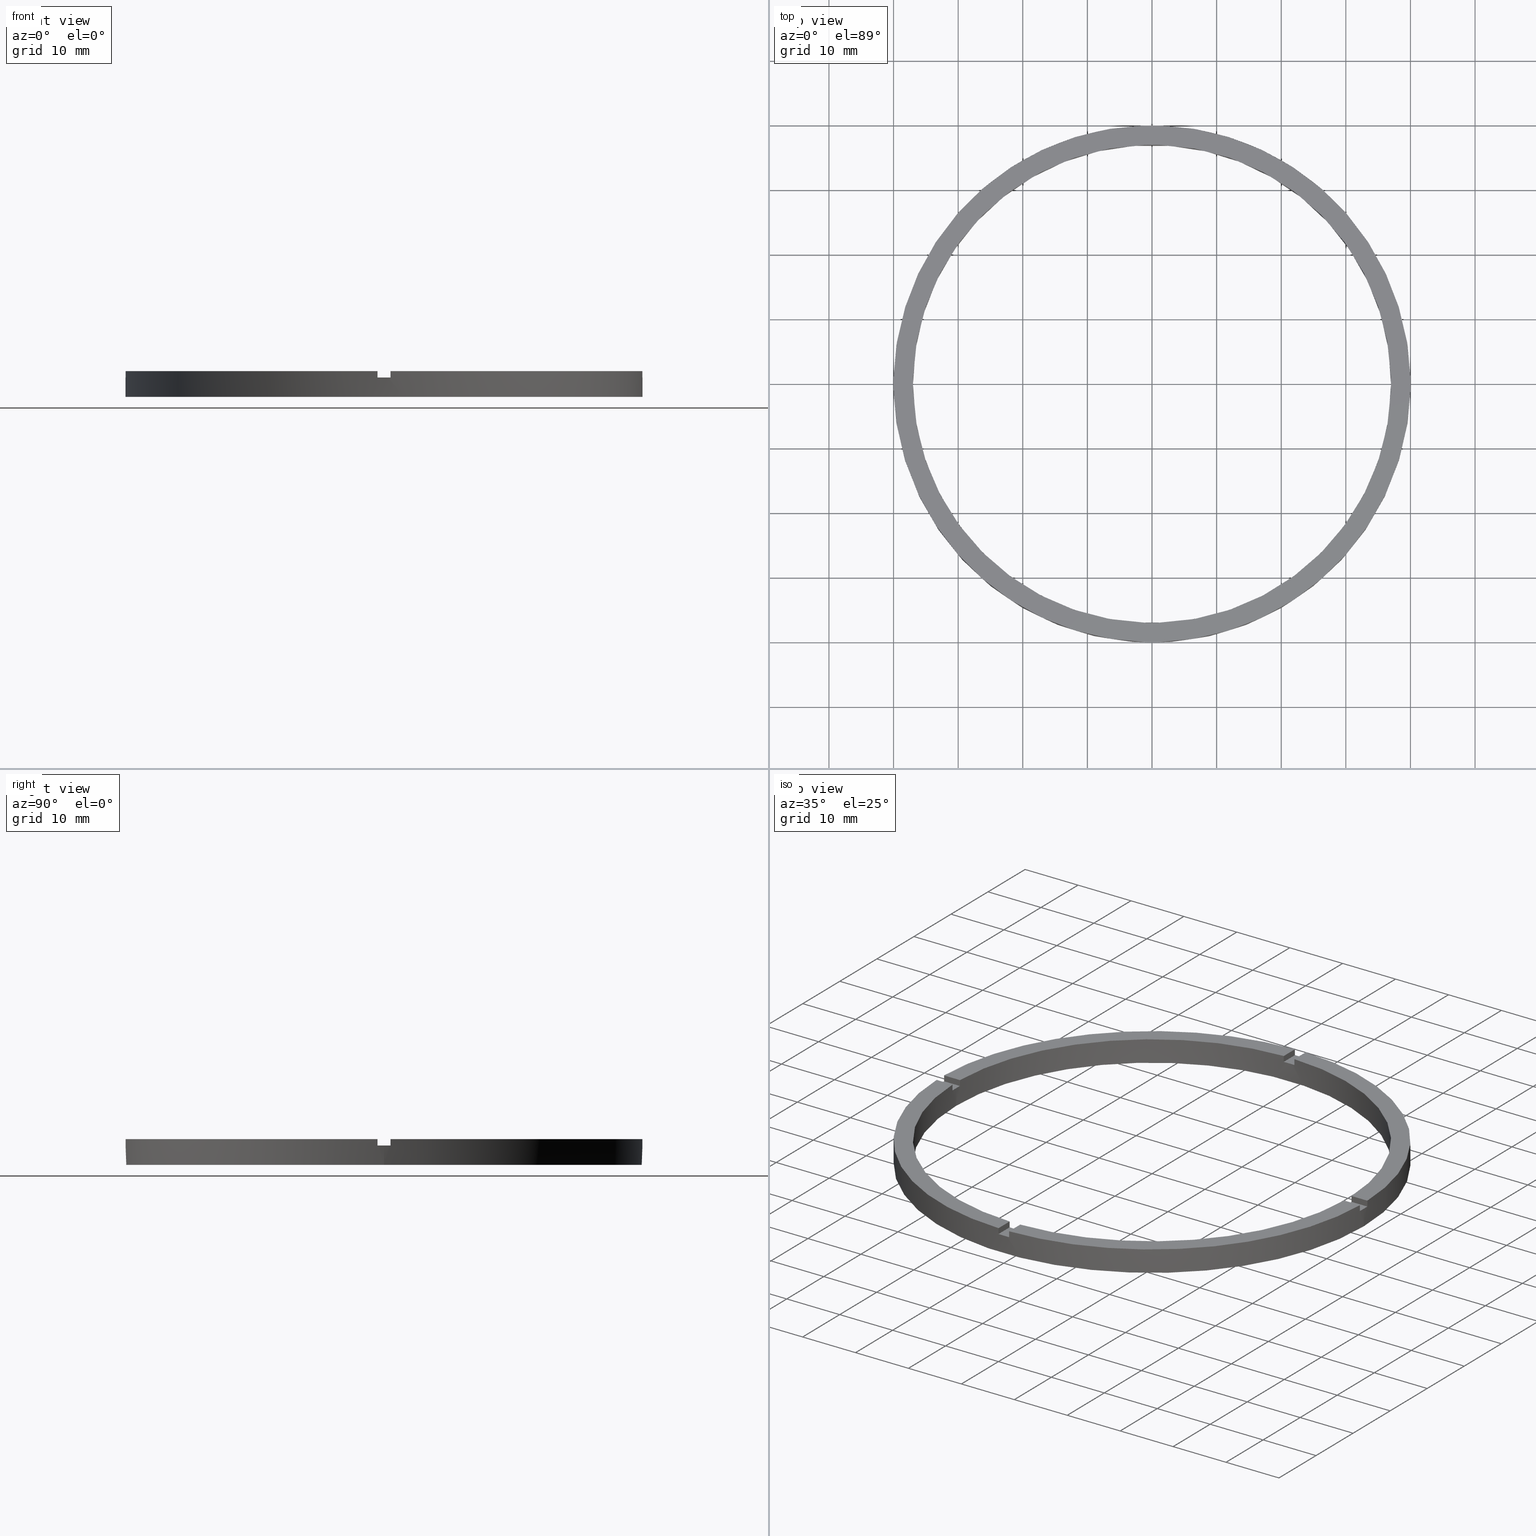
[diagram: canonical four-view strip — front | top / right | iso, engineering-drawing reading convention]
A machine part, canonical four-view strip (front | top / right | iso — engineering-drawing reading convention). The complete STEP part file that produces these views, byte-faithful:
ISO-10303-21;
HEADER;
FILE_DESCRIPTION (( 'STEP AP203' ),
    '1' );
FILE_NAME ('514165.step',
    '2024-12-26T02:43:51',
    ( 'MSI' ),
    ( '' ),
    'SwSTEP 2.0',
    'SolidWorks 2020',
    '' );
FILE_SCHEMA (( 'CONFIG_CONTROL_DESIGN' ));
ENDSEC;

DATA;
#1 = DIRECTION ( 'NONE',  ( 0.000000000000000000, 0.000000000000000000, 1.000000000000000000 ) ) ;
#2 = CIRCLE ( 'NONE', #122, 40.00000000000000000 ) ;
#3 = AXIS2_PLACEMENT_3D ( 'NONE', #463, #532, #585 ) ;
#4 = EDGE_CURVE ( 'NONE', #583, #397, #297, .T. ) ;
#5 = DIRECTION ( 'NONE',  ( 1.000000000000000000, 0.000000000000000000, 0.000000000000000000 ) ) ;
#6 = CARTESIAN_POINT ( 'NONE',  ( 0.000000000000000000, 0.000000000000000000, 4.000000000000000000 ) ) ;
#7 = CARTESIAN_POINT ( 'NONE',  ( -39.98749804626441318, -1.000000000000028422, 4.000000000000000000 ) ) ;
#8 = LINE ( 'NONE', #489, #526 ) ;
#9 = CARTESIAN_POINT ( 'NONE',  ( -1.000000000000159206, -39.98749804626440607, 4.000000000000000000 ) ) ;
#10 = CARTESIAN_POINT ( 'NONE',  ( 0.000000000000000000, 0.000000000000000000, 3.000000000000000000 ) ) ;
#11 = PLANE ( 'NONE',  #385 ) ;
#12 = CARTESIAN_POINT ( 'NONE',  ( 0.000000000000000000, 0.000000000000000000, 3.000000000000000000 ) ) ;
#13 = LINE ( 'NONE', #47, #275 ) ;
#14 = CIRCLE ( 'NONE', #705, 37.00000000000000000 ) ;
#15 = FACE_OUTER_BOUND ( 'NONE', #228, .T. ) ;
#16 = DIRECTION ( 'NONE',  ( -0.000000000000000000, -0.000000000000000000, -1.000000000000000000 ) ) ;
#17 = AXIS2_PLACEMENT_3D ( 'NONE', #46, #449, #520 ) ;
#18 = EDGE_CURVE ( 'NONE', #223, #123, #572, .T. ) ;
#19 = EDGE_CURVE ( 'NONE', #565, #665, #313, .T. ) ;
#20 = CIRCLE ( 'NONE', #439, 40.00000000000000000 ) ;
#21 = DIRECTION ( 'NONE',  ( -0.000000000000000000, -1.000000000000000000, -0.000000000000000000 ) ) ;
#22 = CARTESIAN_POINT ( 'NONE',  ( -1.000000000000025535, 36.98648401781385786, 3.000000000000000000 ) ) ;
#23 = CIRCLE ( 'NONE', #3, 40.00000000000000000 ) ;
#24 = AXIS2_PLACEMENT_3D ( 'NONE', #213, #295, #691 ) ;
#25 = DIRECTION ( 'NONE',  ( 0.000000000000000000, 0.000000000000000000, 1.000000000000000000 ) ) ;
#26 = DIRECTION ( 'NONE',  ( 1.000000000000000000, 0.000000000000000000, 0.000000000000000000 ) ) ;
#27 = EDGE_CURVE ( 'NONE', #58, #727, #299, .T. ) ;
#28 = CARTESIAN_POINT ( 'NONE',  ( 0.000000000000000000, 0.000000000000000000, 3.000000000000000000 ) ) ;
#29 = FACE_OUTER_BOUND ( 'NONE', #669, .T. ) ;
#30 = CC_DESIGN_DATE_AND_TIME_ASSIGNMENT ( #450, #353, ( #198 ) ) ;
#31 = DIRECTION ( 'NONE',  ( 1.000000000000000000, 0.000000000000000000, 0.000000000000000000 ) ) ;
#32 = AXIS2_PLACEMENT_3D ( 'NONE', #155, #261, #414 ) ;
#33 = ORIENTED_EDGE ( 'NONE', *, *, #732, .F. ) ;
#34 = ORIENTED_EDGE ( 'NONE', *, *, #762, .T. ) ;
#35 = ADVANCED_FACE ( 'NONE', ( #49 ), #322, .T. ) ;
#36 = CARTESIAN_POINT ( 'NONE',  ( 0.9999999999999744649, 36.98648401781385786, 4.000000000000000000 ) ) ;
#37 = VERTEX_POINT ( 'NONE', #428 ) ;
#38 = VECTOR ( 'NONE', #775, 1000.000000000000000 ) ;
#39 = DIRECTION ( 'NONE',  ( 0.000000000000000000, 0.000000000000000000, 1.000000000000000000 ) ) ;
#40 = VECTOR ( 'NONE', #107, 1000.000000000000000 ) ;
#41 = EDGE_CURVE ( 'NONE', #145, #234, #68, .T. ) ;
#42 = VERTEX_POINT ( 'NONE', #240 ) ;
#43 = ORIENTED_EDGE ( 'NONE', *, *, #557, .F. ) ;
#44 = ADVANCED_FACE ( 'NONE', ( #600 ), #64, .T. ) ;
#45 = VERTEX_POINT ( 'NONE', #184 ) ;
#46 = CARTESIAN_POINT ( 'NONE',  ( 0.000000000000000000, 0.000000000000000000, 3.000000000000000000 ) ) ;
#47 = CARTESIAN_POINT ( 'NONE',  ( 0.9999999999998404610, -36.98648401781386497, 4.000000000000000000 ) ) ;
#48 = EDGE_LOOP ( 'NONE', ( #314, #578, #214, #633, #566, #587, #293, #296, #568, #406, #141, #368 ) ) ;
#49 = FACE_OUTER_BOUND ( 'NONE', #48, .T. ) ;
#50 = ORIENTED_EDGE ( 'NONE', *, *, #608, .F. ) ;
#51 = VERTEX_POINT ( 'NONE', #69 ) ;
#52 = DIRECTION ( 'NONE',  ( 0.000000000000000000, 1.000000000000000000, 0.000000000000000000 ) ) ;
#53 = CARTESIAN_POINT ( 'NONE',  ( 0.000000000000000000, 0.000000000000000000, 3.000000000000000000 ) ) ;
#54 = ORIENTED_EDGE ( 'NONE', *, *, #248, .T. ) ;
#55 = VERTEX_POINT ( 'NONE', #560 ) ;
#56 = DIRECTION ( 'NONE',  ( 0.000000000000000000, 0.000000000000000000, 1.000000000000000000 ) ) ;
#57 = DIRECTION ( 'NONE',  ( -1.000000000000000000, -6.505213034913025371E-17, -0.000000000000000000 ) ) ;
#58 = VERTEX_POINT ( 'NONE', #190 ) ;
#59 = CARTESIAN_POINT ( 'NONE',  ( -36.98648401781385786, 0.9999999999999722444, 4.000000000000000000 ) ) ;
#60 = AXIS2_PLACEMENT_3D ( 'NONE', #440, #117, #467 ) ;
#61 = ORIENTED_EDGE ( 'NONE', *, *, #666, .F. ) ;
#62 = DIRECTION ( 'NONE',  ( 0.000000000000000000, 0.000000000000000000, 1.000000000000000000 ) ) ;
#63 = CARTESIAN_POINT ( 'NONE',  ( 0.000000000000000000, 0.000000000000000000, 0.000000000000000000 ) ) ;
#64 = CYLINDRICAL_SURFACE ( 'NONE', #148, 40.00000000000000000 ) ;
#65 = PLANE ( 'NONE',  #498 ) ;
#66 = DIRECTION ( 'NONE',  ( 0.000000000000000000, 0.000000000000000000, 1.000000000000000000 ) ) ;
#67 = CALENDAR_DATE ( 2024, 26, 12 ) ;
#68 = CIRCLE ( 'NONE', #465, 37.00000000000000000 ) ;
#69 = CARTESIAN_POINT ( 'NONE',  ( 0.9999999999998409050, -39.98749804626441318, 3.000000000000000000 ) ) ;
#70 = DIRECTION ( 'NONE',  ( 1.000000000000000000, 0.000000000000000000, 0.000000000000000000 ) ) ;
#71 = DIRECTION ( 'NONE',  ( 0.000000000000000000, 0.000000000000000000, 1.000000000000000000 ) ) ;
#72 = VECTOR ( 'NONE', #142, 1000.000000000000000 ) ;
#73 = CARTESIAN_POINT ( 'NONE',  ( 0.000000000000000000, 0.000000000000000000, 4.000000000000000000 ) ) ;
#74 = PERSON_AND_ORGANIZATION ( #692, #333 ) ;
#75 = DATE_AND_TIME ( #606, #613 ) ;
#76 = CARTESIAN_POINT ( 'NONE',  ( 36.98648401781385076, -1.000000000000157208, 3.000000000000000000 ) ) ;
#77 =( LENGTH_UNIT ( ) NAMED_UNIT ( * ) SI_UNIT ( .MILLI., .METRE. ) );
#78 = CARTESIAN_POINT ( 'NONE',  ( 40.00000000000000000, 4.898587196589413026E-15, 3.000000000000000000 ) ) ;
#79 = LINE ( 'NONE', #150, #91 ) ;
#80 = EDGE_CURVE ( 'NONE', #573, #747, #603, .T. ) ;
#81 = EDGE_CURVE ( 'NONE', #116, #92, #555, .T. ) ;
#82 = LINE ( 'NONE', #518, #104 ) ;
#83 = PERSON_AND_ORGANIZATION ( #692, #333 ) ;
#84 = PLANE ( 'NONE',  #32 ) ;
#85 = DIRECTION ( 'NONE',  ( 1.000000000000000000, 1.951563910473907735E-16, -0.000000000000000000 ) ) ;
#86 = VECTOR ( 'NONE', #25, 1000.000000000000000 ) ;
#87 = COORDINATED_UNIVERSAL_TIME_OFFSET ( 8, 0, .AHEAD. ) ;
#88 = DIRECTION ( 'NONE',  ( -0.000000000000000000, 0.000000000000000000, 1.000000000000000000 ) ) ;
#89 = APPROVAL_DATE_TIME ( #75, #171 ) ;
#90 = CARTESIAN_POINT ( 'NONE',  ( 0.9999999999999744649, 30.00000000000000000, 3.000000000000000000 ) ) ;
#91 = VECTOR ( 'NONE', #693, 1000.000000000000000 ) ;
#92 = VERTEX_POINT ( 'NONE', #339 ) ;
#93 = ADVANCED_FACE ( 'NONE', ( #29 ), #549, .F. ) ;
#94 = EDGE_CURVE ( 'NONE', #45, #223, #276, .T. ) ;
#95 = CARTESIAN_POINT ( 'NONE',  ( -1.000000000000160538, -30.00000000000017764, 4.000000000000000000 ) ) ;
#96 = DIRECTION ( 'NONE',  ( -1.000000000000000000, -1.951563910473907735E-16, 0.000000000000000000 ) ) ;
#97 = VECTOR ( 'NONE', #205, 1000.000000000000000 ) ;
#98 = MANIFOLD_SOLID_BREP ( '�г�-����1', #491 ) ;
#99 = LINE ( 'NONE', #680, #86 ) ;
#100 = AXIS2_PLACEMENT_3D ( 'NONE', #410, #718, #365 ) ;
#101 = CC_DESIGN_APPROVAL ( #308, ( #198 ) ) ;
#102 = DIRECTION ( 'NONE',  ( 0.000000000000000000, 0.000000000000000000, 1.000000000000000000 ) ) ;
#103 = ORIENTED_EDGE ( 'NONE', *, *, #697, .T. ) ;
#104 = VECTOR ( 'NONE', #580, 1000.000000000000000 ) ;
#105 = AXIS2_PLACEMENT_3D ( 'NONE', #444, #678, #250 ) ;
#106 = VECTOR ( 'NONE', #522, 1000.000000000000000 ) ;
#107 = DIRECTION ( 'NONE',  ( 0.000000000000000000, 0.000000000000000000, 1.000000000000000000 ) ) ;
#108 = EDGE_LOOP ( 'NONE', ( #212, #760, #725, #479 ) ) ;
#109 = VECTOR ( 'NONE', #16, 1000.000000000000000 ) ;
#110 = PLANE ( 'NONE',  #289 ) ;
#111 = CARTESIAN_POINT ( 'NONE',  ( -37.00000000000000000, 0.000000000000000000, 0.000000000000000000 ) ) ;
#112 = FACE_OUTER_BOUND ( 'NONE', #481, .T. ) ;
#113 = DIRECTION ( 'NONE',  ( 0.000000000000000000, 0.000000000000000000, 1.000000000000000000 ) ) ;
#114 = EDGE_CURVE ( 'NONE', #58, #510, #14, .T. ) ;
#115 = SECURITY_CLASSIFICATION_LEVEL ( 'unclassified' ) ;
#116 = VERTEX_POINT ( 'NONE', #111 ) ;
#117 = DIRECTION ( 'NONE',  ( 0.000000000000000000, 0.000000000000000000, 1.000000000000000000 ) ) ;
#118 = DIRECTION ( 'NONE',  ( -1.000000000000000000, -1.951563910473907735E-16, 0.000000000000000000 ) ) ;
#119 = VECTOR ( 'NONE', #152, 1000.000000000000000 ) ;
#120 = VERTEX_POINT ( 'NONE', #225 ) ;
#121 = DIRECTION ( 'NONE',  ( 1.301042606982605074E-16, -1.000000000000000000, 0.000000000000000000 ) ) ;
#122 = AXIS2_PLACEMENT_3D ( 'NONE', #12, #441, #497 ) ;
#123 = VERTEX_POINT ( 'NONE', #517 ) ;
#124 = DIRECTION ( 'NONE',  ( -1.000000000000000000, 0.000000000000000000, 0.000000000000000000 ) ) ;
#125 = CIRCLE ( 'NONE', #673, 40.00000000000000000 ) ;
#126 = EDGE_CURVE ( 'NONE', #763, #123, #268, .T. ) ;
#127 = CIRCLE ( 'NONE', #194, 40.00000000000000000 ) ;
#128 = EDGE_LOOP ( 'NONE', ( #362, #34, #367, #413 ) ) ;
#129 = ORIENTED_EDGE ( 'NONE', *, *, #524, .T. ) ;
#130 = DIRECTION ( 'NONE',  ( -1.000000000000000000, 0.000000000000000000, 0.000000000000000000 ) ) ;
#131 = LINE ( 'NONE', #392, #119 ) ;
#132 = ORIENTED_EDGE ( 'NONE', *, *, #423, .T. ) ;
#133 = CIRCLE ( 'NONE', #167, 40.00000000000000000 ) ;
#134 = EDGE_LOOP ( 'NONE', ( #307, #757, #574, #320, #739, #581 ) ) ;
#135 = CARTESIAN_POINT ( 'NONE',  ( 29.99999999999999289, -1.000000000000157652, 4.000000000000000000 ) ) ;
#136 = EDGE_CURVE ( 'NONE', #756, #510, #548, .T. ) ;
#137 = FACE_OUTER_BOUND ( 'NONE', #468, .T. ) ;
#138 = DIRECTION ( 'NONE',  ( -0.000000000000000000, -0.000000000000000000, -1.000000000000000000 ) ) ;
#139 = ORIENTED_EDGE ( 'NONE', *, *, #697, .F. ) ;
#140 = ORIENTED_EDGE ( 'NONE', *, *, #504, .F. ) ;
#141 = ORIENTED_EDGE ( 'NONE', *, *, #720, .T. ) ;
#142 = DIRECTION ( 'NONE',  ( -0.000000000000000000, -0.000000000000000000, -1.000000000000000000 ) ) ;
#143 = CARTESIAN_POINT ( 'NONE',  ( 0.000000000000000000, 0.000000000000000000, 4.000000000000000000 ) ) ;
#144 = PLANE ( 'NONE',  #285 ) ;
#145 = VERTEX_POINT ( 'NONE', #76 ) ;
#146 = DIRECTION ( 'NONE',  ( 0.000000000000000000, 0.000000000000000000, 1.000000000000000000 ) ) ;
#147 = VERTEX_POINT ( 'NONE', #597 ) ;
#148 = AXIS2_PLACEMENT_3D ( 'NONE', #363, #550, #130 ) ;
#149 = DIRECTION ( 'NONE',  ( 0.000000000000000000, 0.000000000000000000, 1.000000000000000000 ) ) ;
#150 = CARTESIAN_POINT ( 'NONE',  ( 0.9999999999998395728, -30.00000000000017764, 4.000000000000000000 ) ) ;
#151 = ORIENTED_EDGE ( 'NONE', *, *, #324, .T. ) ;
#152 = DIRECTION ( 'NONE',  ( -0.000000000000000000, -0.000000000000000000, -1.000000000000000000 ) ) ;
#153 = VERTEX_POINT ( 'NONE', #569 ) ;
#154 = EDGE_LOOP ( 'NONE', ( #383, #482, #222, #430 ) ) ;
#155 = CARTESIAN_POINT ( 'NONE',  ( 0.000000000000000000, 0.000000000000000000, 4.000000000000000000 ) ) ;
#156 = LINE ( 'NONE', #168, #420 ) ;
#157 = CARTESIAN_POINT ( 'NONE',  ( 0.9999999999998409050, -39.98749804626441318, 4.000000000000000000 ) ) ;
#158 = ORIENTED_EDGE ( 'NONE', *, *, #164, .T. ) ;
#159 = ORIENTED_EDGE ( 'NONE', *, *, #251, .F. ) ;
#160 = CARTESIAN_POINT ( 'NONE',  ( -39.98749804626441318, -1.000000000000028422, 4.000000000000000000 ) ) ;
#161 = CARTESIAN_POINT ( 'NONE',  ( -1.000000000000025535, 30.00000000000000000, 3.000000000000000000 ) ) ;
#162 = AXIS2_PLACEMENT_3D ( 'NONE', #507, #620, #374 ) ;
#163 = CARTESIAN_POINT ( 'NONE',  ( -30.00000000000018474, -1.000000000000026423, 4.000000000000000000 ) ) ;
#164 = EDGE_CURVE ( 'NONE', #359, #473, #20, .T. ) ;
#165 = APPROVAL_STATUS ( 'not_yet_approved' ) ;
#166 = ADVANCED_FACE ( 'NONE', ( #15 ), #269, .F. ) ;
#167 = AXIS2_PLACEMENT_3D ( 'NONE', #539, #759, #31 ) ;
#168 = CARTESIAN_POINT ( 'NONE',  ( -30.00000000000018474, 0.9999999999999735767, 4.000000000000000000 ) ) ;
#169 = DIRECTION ( 'NONE',  ( -0.000000000000000000, -0.000000000000000000, -1.000000000000000000 ) ) ;
#170 = DIRECTION ( 'NONE',  ( -0.000000000000000000, -0.000000000000000000, -1.000000000000000000 ) ) ;
#171 = APPROVAL ( #586, 'δָ��' ) ;
#172 = ADVANCED_FACE ( 'NONE', ( #278 ), #84, .T. ) ;
#173 = CALENDAR_DATE ( 2024, 26, 12 ) ;
#174 = COORDINATED_UNIVERSAL_TIME_OFFSET ( 8, 0, .AHEAD. ) ;
#175 = LOCAL_TIME ( 10, 43, 51.00000000000000000, #174 ) ;
#176 = LOCAL_TIME ( 10, 43, 51.00000000000000000, #699 ) ;
#177 = AXIS2_PLACEMENT_3D ( 'NONE', #283, #342, #124 ) ;
#178 = PERSON_AND_ORGANIZATION ( #692, #333 ) ;
#179 = PERSON_AND_ORGANIZATION ( #692, #333 ) ;
#180 = CARTESIAN_POINT ( 'NONE',  ( 0.000000000000000000, 0.000000000000000000, 3.000000000000000000 ) ) ;
#181 = CARTESIAN_POINT ( 'NONE',  ( 0.000000000000000000, 0.000000000000000000, 3.000000000000000000 ) ) ;
#182 = DIRECTION ( 'NONE',  ( 0.000000000000000000, 0.000000000000000000, 1.000000000000000000 ) ) ;
#183 = AXIS2_PLACEMENT_3D ( 'NONE', #398, #631, #627 ) ;
#184 = CARTESIAN_POINT ( 'NONE',  ( 0.9999999999998404610, -36.98648401781386497, 4.000000000000000000 ) ) ;
#185 = EDGE_CURVE ( 'NONE', #749, #397, #23, .T. ) ;
#186 = DIRECTION ( 'NONE',  ( 1.000000000000000000, 6.505213034913025371E-17, 0.000000000000000000 ) ) ;
#187 = AXIS2_PLACEMENT_3D ( 'NONE', #53, #654, #483 ) ;
#188 = DIRECTION ( 'NONE',  ( -0.000000000000000000, -0.000000000000000000, -1.000000000000000000 ) ) ;
#189 = CARTESIAN_POINT ( 'NONE',  ( -36.98648401781385786, -1.000000000000027756, 4.000000000000000000 ) ) ;
#190 = CARTESIAN_POINT ( 'NONE',  ( 0.9999999999999744649, 36.98648401781385786, 3.000000000000000000 ) ) ;
#191 = DIRECTION ( 'NONE',  ( 1.000000000000000000, 0.000000000000000000, 0.000000000000000000 ) ) ;
#192 = DIRECTION ( 'NONE',  ( 0.000000000000000000, 0.000000000000000000, -1.000000000000000000 ) ) ;
#193 = ORIENTED_EDGE ( 'NONE', *, *, #232, .F. ) ;
#194 = AXIS2_PLACEMENT_3D ( 'NONE', #263, #325, #26 ) ;
#195 = ORIENTED_EDGE ( 'NONE', *, *, #589, .F. ) ;
#196 = EDGE_LOOP ( 'NONE', ( #509, #132, #158, #209, #139, #151, #496, #726, #409, #679, #435, #411 ) ) ;
#197 = ORIENTED_EDGE ( 'NONE', *, *, #41, .T. ) ;
#198 = SECURITY_CLASSIFICATION ( '', '', #115 ) ;
#199 = DIRECTION ( 'NONE',  ( 1.000000000000000000, 0.000000000000000000, 0.000000000000000000 ) ) ;
#200 = ORIENTED_EDGE ( 'NONE', *, *, #557, .T. ) ;
#201 = EDGE_LOOP ( 'NONE', ( #662, #306, #674, #315 ) ) ;
#202 = ORIENTED_EDGE ( 'NONE', *, *, #626, .F. ) ;
#203 = PLANE ( 'NONE',  #437 ) ;
#204 = ORIENTED_EDGE ( 'NONE', *, *, #136, .F. ) ;
#205 = DIRECTION ( 'NONE',  ( -1.301042606982605074E-16, 1.000000000000000000, -0.000000000000000000 ) ) ;
#206 = ORIENTED_EDGE ( 'NONE', *, *, #279, .F. ) ;
#207 = ORIENTED_EDGE ( 'NONE', *, *, #504, .T. ) ;
#208 = CARTESIAN_POINT ( 'NONE',  ( -1.000000000000159206, -39.98749804626440607, 3.000000000000000000 ) ) ;
#209 = ORIENTED_EDGE ( 'NONE', *, *, #720, .F. ) ;
#210 = ORIENTED_EDGE ( 'NONE', *, *, #687, .F. ) ;
#211 = DIRECTION ( 'NONE',  ( 1.000000000000000000, 0.000000000000000000, -0.000000000000000000 ) ) ;
#212 = ORIENTED_EDGE ( 'NONE', *, *, #682, .T. ) ;
#213 = CARTESIAN_POINT ( 'NONE',  ( 0.000000000000000000, 0.000000000000000000, 3.000000000000000000 ) ) ;
#214 = ORIENTED_EDGE ( 'NONE', *, *, #625, .T. ) ;
#215 = ORIENTED_EDGE ( 'NONE', *, *, #553, .T. ) ;
#216 = PERSON_AND_ORGANIZATION_ROLE ( 'creator' ) ;
#217 = ORIENTED_EDGE ( 'NONE', *, *, #266, .T. ) ;
#218 = VECTOR ( 'NONE', #39, 1000.000000000000000 ) ;
#219 = EDGE_CURVE ( 'NONE', #747, #733, #271, .T. ) ;
#220 = ORIENTED_EDGE ( 'NONE', *, *, #286, .T. ) ;
#221 = EDGE_CURVE ( 'NONE', #721, #583, #543, .T. ) ;
#222 = ORIENTED_EDGE ( 'NONE', *, *, #553, .F. ) ;
#223 = VERTEX_POINT ( 'NONE', #238 ) ;
#224 = DIRECTION ( 'NONE',  ( -0.000000000000000000, -0.000000000000000000, -1.000000000000000000 ) ) ;
#225 = CARTESIAN_POINT ( 'NONE',  ( -39.98749804626441318, -1.000000000000028422, 3.000000000000000000 ) ) ;
#226 = ORIENTED_EDGE ( 'NONE', *, *, #4, .F. ) ;
#227 = ORIENTED_EDGE ( 'NONE', *, *, #355, .F. ) ;
#228 = EDGE_LOOP ( 'NONE', ( #197, #217, #472, #140, #200, #381, #475, #670, #129, #771, #731, #229 ) ) ;
#229 = ORIENTED_EDGE ( 'NONE', *, *, #762, .F. ) ;
#230 = CARTESIAN_POINT ( 'NONE',  ( 29.99999999999999289, 0.9999999999998423483, 3.000000000000000000 ) ) ;
#231 = ORIENTED_EDGE ( 'NONE', *, *, #682, .F. ) ;
#232 = EDGE_CURVE ( 'NONE', #756, #37, #544, .T. ) ;
#233 = FACE_OUTER_BOUND ( 'NONE', #201, .T. ) ;
#234 = VERTEX_POINT ( 'NONE', #358 ) ;
#235 = VECTOR ( 'NONE', #182, 1000.000000000000000 ) ;
#236 = VECTOR ( 'NONE', #707, 1000.000000000000000 ) ;
#237 = CARTESIAN_POINT ( 'NONE',  ( 37.00000000000000000, 4.531193156845206793E-15, 4.000000000000000000 ) ) ;
#238 = CARTESIAN_POINT ( 'NONE',  ( 36.98648401781385076, -1.000000000000157208, 4.000000000000000000 ) ) ;
#239 = AXIS2_PLACEMENT_3D ( 'NONE', #595, #528, #199 ) ;
#240 = CARTESIAN_POINT ( 'NONE',  ( 0.9999999999998404610, -36.98648401781386497, 3.000000000000000000 ) ) ;
#241 = LINE ( 'NONE', #724, #235 ) ;
#242 = LINE ( 'NONE', #290, #738 ) ;
#243 = DIRECTION ( 'NONE',  ( -1.951563910473907735E-16, 1.000000000000000000, 0.000000000000000000 ) ) ;
#244 = CARTESIAN_POINT ( 'NONE',  ( 0.000000000000000000, 0.000000000000000000, 3.000000000000000000 ) ) ;
#245 = DIRECTION ( 'NONE',  ( 0.000000000000000000, 0.000000000000000000, 1.000000000000000000 ) ) ;
#246 =( GEOMETRIC_REPRESENTATION_CONTEXT ( 3 ) GLOBAL_UNCERTAINTY_ASSIGNED_CONTEXT ( ( #640 ) ) GLOBAL_UNIT_ASSIGNED_CONTEXT ( ( #77, #688, #753 ) ) REPRESENTATION_CONTEXT ( 'NONE', 'WORKASPACE' ) );
#247 = DIRECTION ( 'NONE',  ( 1.951563910473907735E-16, -1.000000000000000000, 0.000000000000000000 ) ) ;
#248 = EDGE_CURVE ( 'NONE', #45, #42, #13, .T. ) ;
#249 = PLANE ( 'NONE',  #255 ) ;
#250 = DIRECTION ( 'NONE',  ( 1.000000000000000000, 0.000000000000000000, -0.000000000000000000 ) ) ;
#251 = EDGE_CURVE ( 'NONE', #473, #359, #545, .T. ) ;
#252 = VECTOR ( 'NONE', #186, 1000.000000000000000 ) ;
#253 = DIRECTION ( 'NONE',  ( -1.000000000000000000, 0.000000000000000000, 0.000000000000000000 ) ) ;
#254 = PLANE ( 'NONE',  #183 ) ;
#255 = AXIS2_PLACEMENT_3D ( 'NONE', #681, #243, #118 ) ;
#256 = CIRCLE ( 'NONE', #455, 37.00000000000000000 ) ;
#257 = CARTESIAN_POINT ( 'NONE',  ( 0.9999999999998395728, -30.00000000000017764, 3.000000000000000000 ) ) ;
#258 = ADVANCED_FACE ( 'NONE', ( #511 ), #372, .T. ) ;
#259 = CARTESIAN_POINT ( 'NONE',  ( -36.98648401781385786, 0.9999999999999722444, 3.000000000000000000 ) ) ;
#260 = CIRCLE ( 'NONE', #584, 37.00000000000000000 ) ;
#261 = DIRECTION ( 'NONE',  ( 0.000000000000000000, 0.000000000000000000, 1.000000000000000000 ) ) ;
#262 = CARTESIAN_POINT ( 'NONE',  ( -36.98648401781385786, -1.000000000000027756, 3.000000000000000000 ) ) ;
#263 = CARTESIAN_POINT ( 'NONE',  ( 0.000000000000000000, 0.000000000000000000, 4.000000000000000000 ) ) ;
#264 = ADVANCED_FACE ( 'NONE', ( #492 ), #730, .T. ) ;
#265 = PLANE ( 'NONE',  #60 ) ;
#266 = EDGE_CURVE ( 'NONE', #234, #92, #768, .T. ) ;
#267 = CARTESIAN_POINT ( 'NONE',  ( 0.000000000000000000, 0.000000000000000000, 4.000000000000000000 ) ) ;
#268 = CIRCLE ( 'NONE', #745, 40.00000000000000000 ) ;
#269 = CYLINDRICAL_SURFACE ( 'NONE', #393, 37.00000000000000000 ) ;
#270 = ADVANCED_FACE ( 'NONE', ( #233 ), #110, .T. ) ;
#271 = LINE ( 'NONE', #230, #282 ) ;
#272 = VECTOR ( 'NONE', #121, 1000.000000000000000 ) ;
#273 = CARTESIAN_POINT ( 'NONE',  ( 0.9999999999998395728, -30.00000000000017764, 3.000000000000000000 ) ) ;
#274 = CC_DESIGN_SECURITY_CLASSIFICATION ( #198, ( #304 ) ) ;
#275 = VECTOR ( 'NONE', #433, 1000.000000000000000 ) ;
#276 = CIRCLE ( 'NONE', #277, 37.00000000000000000 ) ;
#277 = AXIS2_PLACEMENT_3D ( 'NONE', #331, #379, #647 ) ;
#278 = FACE_OUTER_BOUND ( 'NONE', #154, .T. ) ;
#279 = EDGE_CURVE ( 'NONE', #575, #147, #241, .T. ) ;
#280 = DIRECTION ( 'NONE',  ( 0.000000000000000000, 0.000000000000000000, 1.000000000000000000 ) ) ;
#281 = ADVANCED_FACE ( 'NONE', ( #770 ), #470, .T. ) ;
#282 = VECTOR ( 'NONE', #287, 1000.000000000000000 ) ;
#283 = CARTESIAN_POINT ( 'NONE',  ( 0.000000000000000000, 0.000000000000000000, 4.000000000000000000 ) ) ;
#284 = CARTESIAN_POINT ( 'NONE',  ( 40.00000000000000000, 4.898587196589413026E-15, 0.000000000000000000 ) ) ;
#285 = AXIS2_PLACEMENT_3D ( 'NONE', #267, #462, #211 ) ;
#286 = EDGE_CURVE ( 'NONE', #234, #733, #779, .T. ) ;
#287 = DIRECTION ( 'NONE',  ( -1.000000000000000000, -6.505213034913025371E-17, -0.000000000000000000 ) ) ;
#288 = ORIENTED_EDGE ( 'NONE', *, *, #94, .F. ) ;
#289 = AXIS2_PLACEMENT_3D ( 'NONE', #244, #612, #302 ) ;
#290 = CARTESIAN_POINT ( 'NONE',  ( -1.000000000000025535, 39.98749804626441318, 4.000000000000000000 ) ) ;
#291 = EDGE_LOOP ( 'NONE', ( #103, #401, #493, #43, #350, #746 ) ) ;
#292 = CARTESIAN_POINT ( 'NONE',  ( 0.000000000000000000, 0.000000000000000000, 4.000000000000000000 ) ) ;
#293 = ORIENTED_EDGE ( 'NONE', *, *, #4, .T. ) ;
#294 = EDGE_CURVE ( 'NONE', #512, #756, #508, .T. ) ;
#295 = DIRECTION ( 'NONE',  ( 0.000000000000000000, 0.000000000000000000, 1.000000000000000000 ) ) ;
#296 = ORIENTED_EDGE ( 'NONE', *, *, #185, .F. ) ;
#297 = LINE ( 'NONE', #9, #579 ) ;
#298 = AXIS2_PLACEMENT_3D ( 'NONE', #63, #301, #442 ) ;
#299 = LINE ( 'NONE', #36, #40 ) ;
#300 = DIRECTION ( 'NONE',  ( 1.000000000000000000, 0.000000000000000000, 0.000000000000000000 ) ) ;
#301 = DIRECTION ( 'NONE',  ( 0.000000000000000000, 0.000000000000000000, 1.000000000000000000 ) ) ;
#302 = DIRECTION ( 'NONE',  ( 1.000000000000000000, 0.000000000000000000, -0.000000000000000000 ) ) ;
#303 = ORIENTED_EDGE ( 'NONE', *, *, #765, .F. ) ;
#304 = PRODUCT_DEFINITION_FORMATION_WITH_SPECIFIED_SOURCE ( '�κ�', '', #714, .NOT_KNOWN. ) ;
#305 = ORIENTED_EDGE ( 'NONE', *, *, #221, .T. ) ;
#306 = ORIENTED_EDGE ( 'NONE', *, *, #780, .T. ) ;
#307 = ORIENTED_EDGE ( 'NONE', *, *, #460, .T. ) ;
#308 = APPROVAL ( #621, 'δָ��' ) ;
#309 = ORIENTED_EDGE ( 'NONE', *, *, #377, .T. ) ;
#310 = CARTESIAN_POINT ( 'NONE',  ( -1.000000000000159650, -36.98648401781385076, 4.000000000000000000 ) ) ;
#311 = EDGE_LOOP ( 'NONE', ( #403, #740 ) ) ;
#312 = AXIS2_PLACEMENT_3D ( 'NONE', #542, #113, #451 ) ;
#313 = CIRCLE ( 'NONE', #567, 37.00000000000000000 ) ;
#314 = ORIENTED_EDGE ( 'NONE', *, *, #423, .F. ) ;
#315 = ORIENTED_EDGE ( 'NONE', *, *, #765, .T. ) ;
#316 = CARTESIAN_POINT ( 'NONE',  ( 0.000000000000000000, 0.000000000000000000, 4.000000000000000000 ) ) ;
#317 = DIRECTION ( 'NONE',  ( 1.000000000000000000, 0.000000000000000000, 0.000000000000000000 ) ) ;
#318 = ORIENTED_EDGE ( 'NONE', *, *, #345, .T. ) ;
#319 = CARTESIAN_POINT ( 'NONE',  ( 0.000000000000000000, 0.000000000000000000, 3.000000000000000000 ) ) ;
#320 = ORIENTED_EDGE ( 'NONE', *, *, #286, .F. ) ;
#321 = PRODUCT_DEFINITION ( 'δ֪', '', #304, #663 ) ;
#322 = CYLINDRICAL_SURFACE ( 'NONE', #177, 40.00000000000000000 ) ;
#323 = PLANE ( 'NONE',  #443 ) ;
#324 = EDGE_CURVE ( 'NONE', #642, #638, #773, .T. ) ;
#325 = DIRECTION ( 'NONE',  ( 0.000000000000000000, 0.000000000000000000, 1.000000000000000000 ) ) ;
#326 = DIRECTION ( 'NONE',  ( -1.000000000000000000, 0.000000000000000000, 0.000000000000000000 ) ) ;
#327 = CALENDAR_DATE ( 2024, 26, 12 ) ;
#328 = CARTESIAN_POINT ( 'NONE',  ( -1.000000000000159650, -36.98648401781385076, 4.000000000000000000 ) ) ;
#329 = AXIS2_PLACEMENT_3D ( 'NONE', #6, #245, #366 ) ;
#330 = EDGE_CURVE ( 'NONE', #749, #120, #487, .T. ) ;
#331 = CARTESIAN_POINT ( 'NONE',  ( 0.000000000000000000, 0.000000000000000000, 4.000000000000000000 ) ) ;
#332 = CARTESIAN_POINT ( 'NONE',  ( -40.00000000000000000, 0.000000000000000000, 4.000000000000000000 ) ) ;
#333 = ORGANIZATION ( 'δָ��', 'δָ��', '' ) ;
#334 = APPROVAL_PERSON_ORGANIZATION ( #616, #171, #594 ) ;
#335 = DIRECTION ( 'NONE',  ( 0.000000000000000000, 0.000000000000000000, 1.000000000000000000 ) ) ;
#336 = DATE_AND_TIME ( #327, #338 ) ;
#337 = FACE_OUTER_BOUND ( 'NONE', #503, .T. ) ;
#338 = LOCAL_TIME ( 10, 43, 51.00000000000000000, #87 ) ;
#339 = CARTESIAN_POINT ( 'NONE',  ( 37.00000000000000000, 4.531193156845206793E-15, 0.000000000000000000 ) ) ;
#340 = DIRECTION ( 'NONE',  ( 0.000000000000000000, 0.000000000000000000, 1.000000000000000000 ) ) ;
#341 = AXIS2_PLACEMENT_3D ( 'NONE', #755, #402, #604 ) ;
#342 = DIRECTION ( 'NONE',  ( -0.000000000000000000, -0.000000000000000000, -1.000000000000000000 ) ) ;
#343 = LINE ( 'NONE', #332, #605 ) ;
#344 = LOCAL_TIME ( 10, 43, 51.00000000000000000, #614 ) ;
#345 = EDGE_CURVE ( 'NONE', #502, #37, #519, .T. ) ;
#346 = LINE ( 'NONE', #570, #615 ) ;
#347 = COORDINATED_UNIVERSAL_TIME_OFFSET ( 8, 0, .AHEAD. ) ;
#348 = DIRECTION ( 'NONE',  ( -0.000000000000000000, 0.000000000000000000, 1.000000000000000000 ) ) ;
#349 = FACE_OUTER_BOUND ( 'NONE', #766, .T. ) ;
#350 = ORIENTED_EDGE ( 'NONE', *, *, #446, .F. ) ;
#351 = CARTESIAN_POINT ( 'NONE',  ( -1.000000000000160538, -30.00000000000017764, 3.000000000000000000 ) ) ;
#352 = VECTOR ( 'NONE', #85, 1000.000000000000000 ) ;
#353 = DATE_TIME_ROLE ( 'classification_date' ) ;
#354 = LINE ( 'NONE', #273, #97 ) ;
#355 = EDGE_CURVE ( 'NONE', #512, #635, #242, .T. ) ;
#356 = LINE ( 'NONE', #459, #106 ) ;
#357 = CARTESIAN_POINT ( 'NONE',  ( 0.000000000000000000, 0.000000000000000000, 3.000000000000000000 ) ) ;
#358 = CARTESIAN_POINT ( 'NONE',  ( 37.00000000000000000, 4.531193156845206793E-15, 3.000000000000000000 ) ) ;
#359 = VERTEX_POINT ( 'NONE', #284 ) ;
#360 = PRODUCT_DEFINITION_SHAPE ( 'NONE', 'NONE',  #321 ) ;
#361 = LINE ( 'NONE', #457, #109 ) ;
#362 = ORIENTED_EDGE ( 'NONE', *, *, #476, .F. ) ;
#363 = CARTESIAN_POINT ( 'NONE',  ( 0.000000000000000000, 0.000000000000000000, 4.000000000000000000 ) ) ;
#364 = CIRCLE ( 'NONE', #711, 40.00000000000000000 ) ;
#365 = DIRECTION ( 'NONE',  ( 1.000000000000000000, 0.000000000000000000, 0.000000000000000000 ) ) ;
#366 = DIRECTION ( 'NONE',  ( 1.000000000000000000, 0.000000000000000000, -0.000000000000000000 ) ) ;
#367 = ORIENTED_EDGE ( 'NONE', *, *, #18, .T. ) ;
#368 = ORIENTED_EDGE ( 'NONE', *, *, #251, .T. ) ;
#369 = ORIENTED_EDGE ( 'NONE', *, *, #713, .T. ) ;
#370 = DIRECTION ( 'NONE',  ( 1.000000000000000000, 1.951563910473907735E-16, 0.000000000000000000 ) ) ;
#371 = DIRECTION ( 'NONE',  ( 1.000000000000000000, 0.000000000000000000, 0.000000000000000000 ) ) ;
#372 = PLANE ( 'NONE',  #105 ) ;
#373 = FACE_OUTER_BOUND ( 'NONE', #728, .T. ) ;
#374 = DIRECTION ( 'NONE',  ( 1.000000000000000000, 0.000000000000000000, -0.000000000000000000 ) ) ;
#375 = CIRCLE ( 'NONE', #24, 37.00000000000000000 ) ;
#376 = ORIENTED_EDGE ( 'NONE', *, *, #126, .T. ) ;
#377 = EDGE_CURVE ( 'NONE', #583, #51, #499, .T. ) ;
#378 = ORIENTED_EDGE ( 'NONE', *, *, #666, .T. ) ;
#379 = DIRECTION ( 'NONE',  ( 0.000000000000000000, 0.000000000000000000, 1.000000000000000000 ) ) ;
#380 = PLANE ( 'NONE',  #404 ) ;
#381 = ORIENTED_EDGE ( 'NONE', *, *, #478, .F. ) ;
#382 = CIRCLE ( 'NONE', #418, 37.00000000000000000 ) ;
#383 = ORIENTED_EDGE ( 'NONE', *, *, #431, .F. ) ;
#384 = FACE_BOUND ( 'NONE', #311, .T. ) ;
#385 = AXIS2_PLACEMENT_3D ( 'NONE', #723, #618, #729 ) ;
#386 = ORIENTED_EDGE ( 'NONE', *, *, #780, .F. ) ;
#387 = LINE ( 'NONE', #95, #400 ) ;
#388 = ORIENTED_EDGE ( 'NONE', *, *, #27, .F. ) ;
#389 = DIRECTION ( 'NONE',  ( 0.000000000000000000, 0.000000000000000000, 1.000000000000000000 ) ) ;
#390 = LINE ( 'NONE', #505, #408 ) ;
#391 = ORIENTED_EDGE ( 'NONE', *, *, #324, .F. ) ;
#392 = CARTESIAN_POINT ( 'NONE',  ( -37.00000000000000000, 0.000000000000000000, 4.000000000000000000 ) ) ;
#393 = AXIS2_PLACEMENT_3D ( 'NONE', #143, #188, #253 ) ;
#394 = APPROVAL ( #165, 'δָ��' ) ;
#395 = ORIENTED_EDGE ( 'NONE', *, *, #18, .F. ) ;
#396 = CIRCLE ( 'NONE', #100, 40.00000000000000000 ) ;
#397 = VERTEX_POINT ( 'NONE', #710 ) ;
#398 = CARTESIAN_POINT ( 'NONE',  ( -1.000000000000160538, -30.00000000000017764, 3.000000000000000000 ) ) ;
#399 = ADVANCED_FACE ( 'NONE', ( #751 ), #782, .T. ) ;
#400 = VECTOR ( 'NONE', #602, 1000.000000000000000 ) ;
#401 = ORIENTED_EDGE ( 'NONE', *, *, #551, .T. ) ;
#402 = DIRECTION ( 'NONE',  ( 6.505213034913025371E-17, -1.000000000000000000, 0.000000000000000000 ) ) ;
#403 = ORIENTED_EDGE ( 'NONE', *, *, #81, .T. ) ;
#404 = AXIS2_PLACEMENT_3D ( 'NONE', #257, #685, #576 ) ;
#405 = CARTESIAN_POINT ( 'NONE',  ( -36.98648401781385786, -1.000000000000027756, 4.000000000000000000 ) ) ;
#406 = ORIENTED_EDGE ( 'NONE', *, *, #551, .F. ) ;
#407 = ORIENTED_EDGE ( 'NONE', *, *, #27, .T. ) ;
#408 = VECTOR ( 'NONE', #138, 1000.000000000000000 ) ;
#409 = ORIENTED_EDGE ( 'NONE', *, *, #530, .F. ) ;
#410 = CARTESIAN_POINT ( 'NONE',  ( 0.000000000000000000, 0.000000000000000000, 3.000000000000000000 ) ) ;
#411 = ORIENTED_EDGE ( 'NONE', *, *, #80, .T. ) ;
#412 = FACE_OUTER_BOUND ( 'NONE', #485, .T. ) ;
#413 = ORIENTED_EDGE ( 'NONE', *, *, #625, .F. ) ;
#414 = DIRECTION ( 'NONE',  ( 1.000000000000000000, 0.000000000000000000, -0.000000000000000000 ) ) ;
#415 = PERSON_AND_ORGANIZATION_ROLE ( 'creator' ) ;
#416 = VECTOR ( 'NONE', #529, 1000.000000000000000 ) ;
#417 = EDGE_LOOP ( 'NONE', ( #195, #683, #231, #677 ) ) ;
#418 = AXIS2_PLACEMENT_3D ( 'NONE', #319, #88, #523 ) ;
#419 = ADVANCED_FACE ( 'NONE', ( #501 ), #563, .T. ) ;
#420 = VECTOR ( 'NONE', #96, 1000.000000000000000 ) ;
#421 = ORIENTED_EDGE ( 'NONE', *, *, #136, .T. ) ;
#422 = CARTESIAN_POINT ( 'NONE',  ( -1.000000000000025535, 39.98749804626441318, 3.000000000000000000 ) ) ;
#423 = EDGE_CURVE ( 'NONE', #514, #359, #754, .T. ) ;
#424 = FACE_OUTER_BOUND ( 'NONE', #417, .T. ) ;
#425 = CARTESIAN_POINT ( 'NONE',  ( 0.000000000000000000, 0.000000000000000000, 4.000000000000000000 ) ) ;
#426 = DIRECTION ( 'NONE',  ( 1.000000000000000000, 0.000000000000000000, 0.000000000000000000 ) ) ;
#427 = LINE ( 'NONE', #310, #622 ) ;
#428 = CARTESIAN_POINT ( 'NONE',  ( -36.98648401781385786, 0.9999999999999722444, 4.000000000000000000 ) ) ;
#429 = DIRECTION ( 'NONE',  ( 0.000000000000000000, -0.000000000000000000, 1.000000000000000000 ) ) ;
#430 = ORIENTED_EDGE ( 'NONE', *, *, #525, .T. ) ;
#431 = EDGE_CURVE ( 'NONE', #727, #147, #8, .T. ) ;
#432 = ORIENTED_EDGE ( 'NONE', *, *, #294, .F. ) ;
#433 = DIRECTION ( 'NONE',  ( -0.000000000000000000, -0.000000000000000000, -1.000000000000000000 ) ) ;
#434 = ADVANCED_BREP_SHAPE_REPRESENTATION ( '514165', ( #98, #655 ), #246 ) ;
#435 = ORIENTED_EDGE ( 'NONE', *, *, #525, .F. ) ;
#436 = CARTESIAN_POINT ( 'NONE',  ( -1.000000000000025535, 30.00000000000000000, 4.000000000000000000 ) ) ;
#437 = AXIS2_PLACEMENT_3D ( 'NONE', #161, #326, #280 ) ;
#438 = PRODUCT_RELATED_PRODUCT_CATEGORY ( 'detail', '', ( #714 ) ) ;
#439 = AXIS2_PLACEMENT_3D ( 'NONE', #660, #149, #70 ) ;
#440 = CARTESIAN_POINT ( 'NONE',  ( 0.000000000000000000, 0.000000000000000000, 0.000000000000000000 ) ) ;
#441 = DIRECTION ( 'NONE',  ( 0.000000000000000000, 0.000000000000000000, 1.000000000000000000 ) ) ;
#442 = DIRECTION ( 'NONE',  ( 1.000000000000000000, 0.000000000000000000, 0.000000000000000000 ) ) ;
#443 = AXIS2_PLACEMENT_3D ( 'NONE', #90, #736, #192 ) ;
#444 = CARTESIAN_POINT ( 'NONE',  ( 0.000000000000000000, 0.000000000000000000, 4.000000000000000000 ) ) ;
#445 = PERSON_AND_ORGANIZATION_ROLE ( 'design_supplier' ) ;
#446 = EDGE_CURVE ( 'NONE', #502, #590, #256, .T. ) ;
#447 = DATE_AND_TIME ( #67, #344 ) ;
#448 = CARTESIAN_POINT ( 'NONE',  ( -1.000000000000025535, 36.98648401781385786, 4.000000000000000000 ) ) ;
#449 = DIRECTION ( 'NONE',  ( 0.000000000000000000, 0.000000000000000000, 1.000000000000000000 ) ) ;
#450 = DATE_AND_TIME ( #173, #176 ) ;
#451 = DIRECTION ( 'NONE',  ( 1.000000000000000000, 0.000000000000000000, 0.000000000000000000 ) ) ;
#452 = PERSON_AND_ORGANIZATION ( #692, #333 ) ;
#453 = CALENDAR_DATE ( 2024, 26, 12 ) ;
#454 = APPROVAL_PERSON_ORGANIZATION ( #694, #308, #675 ) ;
#455 = AXIS2_PLACEMENT_3D ( 'NONE', #181, #66, #513 ) ;
#456 = DATE_AND_TIME ( #453, #175 ) ;
#457 = CARTESIAN_POINT ( 'NONE',  ( 36.98648401781386497, 0.9999999999998427924, 4.000000000000000000 ) ) ;
#458 = CARTESIAN_POINT ( 'NONE',  ( -1.000000000000025535, 39.98749804626441318, 4.000000000000000000 ) ) ;
#459 = CARTESIAN_POINT ( 'NONE',  ( -30.00000000000018474, 0.9999999999999735767, 3.000000000000000000 ) ) ;
#460 = EDGE_CURVE ( 'NONE', #153, #514, #2, .T. ) ;
#461 = CC_DESIGN_PERSON_AND_ORGANIZATION_ASSIGNMENT ( #83, #415, ( #321 ) ) ;
#462 = DIRECTION ( 'NONE',  ( 0.000000000000000000, 0.000000000000000000, 1.000000000000000000 ) ) ;
#463 = CARTESIAN_POINT ( 'NONE',  ( 0.000000000000000000, 0.000000000000000000, 4.000000000000000000 ) ) ;
#464 = APPROVAL_ROLE ( '' ) ;
#465 = AXIS2_PLACEMENT_3D ( 'NONE', #180, #62, #300 ) ;
#466 = EDGE_CURVE ( 'NONE', #55, #727, #260, .T. ) ;
#467 = DIRECTION ( 'NONE',  ( 1.000000000000000000, 0.000000000000000000, -0.000000000000000000 ) ) ;
#468 = EDGE_LOOP ( 'NONE', ( #215, #378, #582, #506 ) ) ;
#469 = CARTESIAN_POINT ( 'NONE',  ( -39.98749804626441318, 0.9999999999999715783, 3.000000000000000000 ) ) ;
#470 = PLANE ( 'NONE',  #719 ) ;
#471 = APPLICATION_PROTOCOL_DEFINITION ( 'international standard', 'config_control_design', 1994, #778 ) ;
#472 = ORIENTED_EDGE ( 'NONE', *, *, #81, .F. ) ;
#473 = VERTEX_POINT ( 'NONE', #546 ) ;
#474 = ORIENTED_EDGE ( 'NONE', *, *, #713, .F. ) ;
#475 = ORIENTED_EDGE ( 'NONE', *, *, #19, .T. ) ;
#476 = EDGE_CURVE ( 'NONE', #145, #153, #783, .T. ) ;
#477 = ORIENTED_EDGE ( 'NONE', *, *, #687, .T. ) ;
#478 = EDGE_CURVE ( 'NONE', #565, #653, #531, .T. ) ;
#479 = ORIENTED_EDGE ( 'NONE', *, *, #330, .F. ) ;
#480 = ADVANCED_FACE ( 'NONE', ( #373 ), #249, .F. ) ;
#481 = EDGE_LOOP ( 'NONE', ( #159, #559 ) ) ;
#482 = ORIENTED_EDGE ( 'NONE', *, *, #466, .F. ) ;
#483 = DIRECTION ( 'NONE',  ( 1.000000000000000000, 0.000000000000000000, 0.000000000000000000 ) ) ;
#484 = ORIENTED_EDGE ( 'NONE', *, *, #431, .T. ) ;
#485 = EDGE_LOOP ( 'NONE', ( #500, #421, #386, #227 ) ) ;
#486 = AXIS2_PLACEMENT_3D ( 'NONE', #357, #348, #596 ) ;
#487 = LINE ( 'NONE', #7, #774 ) ;
#488 = ORIENTED_EDGE ( 'NONE', *, *, #645, .T. ) ;
#489 = CARTESIAN_POINT ( 'NONE',  ( 0.9999999999999744649, 30.00000000000000000, 4.000000000000000000 ) ) ;
#490 = ORIENTED_EDGE ( 'NONE', *, *, #446, .T. ) ;
#491 = CLOSED_SHELL ( 'NONE', ( #166, #44, #258, #172, #419, #649, #571, #35, #93, #592, #480, #399, #700, #777, #281, #598, #527, #264, #628, #709, #270 ) ) ;
#492 = FACE_OUTER_BOUND ( 'NONE', #134, .T. ) ;
#493 = ORIENTED_EDGE ( 'NONE', *, *, #689, .T. ) ;
#494 = CARTESIAN_POINT ( 'NONE',  ( 0.000000000000000000, 0.000000000000000000, 4.000000000000000000 ) ) ;
#495 = CARTESIAN_POINT ( 'NONE',  ( 0.9999999999999744649, 39.98749804626441318, 3.000000000000000000 ) ) ;
#496 = ORIENTED_EDGE ( 'NONE', *, *, #645, .F. ) ;
#497 = DIRECTION ( 'NONE',  ( 1.000000000000000000, 0.000000000000000000, 0.000000000000000000 ) ) ;
#498 = AXIS2_PLACEMENT_3D ( 'NONE', #554, #247, #370 ) ;
#499 = CIRCLE ( 'NONE', #486, 40.00000000000000000 ) ;
#500 = ORIENTED_EDGE ( 'NONE', *, *, #294, .T. ) ;
#501 = FACE_OUTER_BOUND ( 'NONE', #624, .T. ) ;
#502 = VERTEX_POINT ( 'NONE', #259 ) ;
#503 = EDGE_LOOP ( 'NONE', ( #737, #643, #577, #226 ) ) ;
#504 = EDGE_CURVE ( 'NONE', #590, #116, #131, .T. ) ;
#505 = CARTESIAN_POINT ( 'NONE',  ( 0.9999999999998409050, -39.98749804626441318, 4.000000000000000000 ) ) ;
#506 = ORIENTED_EDGE ( 'NONE', *, *, #80, .F. ) ;
#507 = CARTESIAN_POINT ( 'NONE',  ( 0.000000000000000000, 0.000000000000000000, 3.000000000000000000 ) ) ;
#508 = LINE ( 'NONE', #436, #515 ) ;
#509 = ORIENTED_EDGE ( 'NONE', *, *, #588, .F. ) ;
#510 = VERTEX_POINT ( 'NONE', #22 ) ;
#511 = FACE_OUTER_BOUND ( 'NONE', #668, .T. ) ;
#512 = VERTEX_POINT ( 'NONE', #458 ) ;
#513 = DIRECTION ( 'NONE',  ( 1.000000000000000000, 0.000000000000000000, 0.000000000000000000 ) ) ;
#514 = VERTEX_POINT ( 'NONE', #78 ) ;
#515 = VECTOR ( 'NONE', #541, 1000.000000000000000 ) ;
#516 = AXIS2_PLACEMENT_3D ( 'NONE', #292, #1, #717 ) ;
#517 = CARTESIAN_POINT ( 'NONE',  ( 39.98749804626440607, -1.000000000000156986, 4.000000000000000000 ) ) ;
#518 = CARTESIAN_POINT ( 'NONE',  ( -30.00000000000018474, -1.000000000000026423, 3.000000000000000000 ) ) ;
#519 = LINE ( 'NONE', #59, #218 ) ;
#520 = DIRECTION ( 'NONE',  ( 1.000000000000000000, 0.000000000000000000, -0.000000000000000000 ) ) ;
#521 = DIRECTION ( 'NONE',  ( 1.000000000000000000, 0.000000000000000000, 0.000000000000000000 ) ) ;
#522 = DIRECTION ( 'NONE',  ( -1.000000000000000000, -1.951563910473907735E-16, 0.000000000000000000 ) ) ;
#523 = DIRECTION ( 'NONE',  ( 1.000000000000000000, 0.000000000000000000, 0.000000000000000000 ) ) ;
#524 = EDGE_CURVE ( 'NONE', #721, #42, #382, .T. ) ;
#525 = EDGE_CURVE ( 'NONE', #573, #147, #127, .T. ) ;
#526 = VECTOR ( 'NONE', #52, 1000.000000000000000 ) ;
#527 = ADVANCED_FACE ( 'NONE', ( #636 ), #690, .F. ) ;
#528 = DIRECTION ( 'NONE',  ( 0.000000000000000000, 0.000000000000000000, 1.000000000000000000 ) ) ;
#529 = DIRECTION ( 'NONE',  ( 0.000000000000000000, 0.000000000000000000, 1.000000000000000000 ) ) ;
#530 = EDGE_CURVE ( 'NONE', #575, #635, #396, .T. ) ;
#531 = LINE ( 'NONE', #189, #639 ) ;
#532 = DIRECTION ( 'NONE',  ( 0.000000000000000000, 0.000000000000000000, 1.000000000000000000 ) ) ;
#533 = APPLICATION_CONTEXT ( 'configuration controlled 3d designs of mechanical parts and assemblies' ) ;
#534 = DIRECTION ( 'NONE',  ( 1.000000000000000000, 0.000000000000000000, 0.000000000000000000 ) ) ;
#535 = APPLICATION_PROTOCOL_DEFINITION ( 'international standard', 'config_control_design', 1994, #533 ) ;
#536 = CC_DESIGN_PERSON_AND_ORGANIZATION_ASSIGNMENT ( #452, #216, ( #304 ) ) ;
#537 = DIRECTION ( 'NONE',  ( 1.000000000000000000, 0.000000000000000000, 0.000000000000000000 ) ) ;
#538 = DIRECTION ( 'NONE',  ( 0.000000000000000000, 0.000000000000000000, 1.000000000000000000 ) ) ;
#539 = CARTESIAN_POINT ( 'NONE',  ( 0.000000000000000000, 0.000000000000000000, 3.000000000000000000 ) ) ;
#540 = VECTOR ( 'NONE', #170, 1000.000000000000000 ) ;
#541 = DIRECTION ( 'NONE',  ( -0.000000000000000000, -1.000000000000000000, -0.000000000000000000 ) ) ;
#542 = CARTESIAN_POINT ( 'NONE',  ( 0.000000000000000000, 0.000000000000000000, 0.000000000000000000 ) ) ;
#543 = LINE ( 'NONE', #351, #272 ) ;
#544 = CIRCLE ( 'NONE', #516, 37.00000000000000000 ) ;
#545 = CIRCLE ( 'NONE', #312, 40.00000000000000000 ) ;
#546 = CARTESIAN_POINT ( 'NONE',  ( -40.00000000000000000, 0.000000000000000000, 0.000000000000000000 ) ) ;
#547 = DIRECTION ( 'NONE',  ( -0.000000000000000000, -0.000000000000000000, -1.000000000000000000 ) ) ;
#548 = LINE ( 'NONE', #656, #540 ) ;
#549 = CYLINDRICAL_SURFACE ( 'NONE', #607, 37.00000000000000000 ) ;
#550 = DIRECTION ( 'NONE',  ( -0.000000000000000000, -0.000000000000000000, -1.000000000000000000 ) ) ;
#551 = EDGE_CURVE ( 'NONE', #769, #120, #125, .T. ) ;
#552 = DIRECTION ( 'NONE',  ( -0.000000000000000000, -0.000000000000000000, -1.000000000000000000 ) ) ;
#553 = EDGE_CURVE ( 'NONE', #573, #55, #652, .T. ) ;
#554 = CARTESIAN_POINT ( 'NONE',  ( -30.00000000000018474, -1.000000000000026423, 3.000000000000000000 ) ) ;
#555 = CIRCLE ( 'NONE', #644, 37.00000000000000000 ) ;
#556 = CARTESIAN_POINT ( 'NONE',  ( 29.99999999999999289, -1.000000000000157652, 3.000000000000000000 ) ) ;
#557 = EDGE_CURVE ( 'NONE', #590, #653, #375, .T. ) ;
#558 = CARTESIAN_POINT ( 'NONE',  ( -1.000000000000159650, -36.98648401781385076, 3.000000000000000000 ) ) ;
#559 = ORIENTED_EDGE ( 'NONE', *, *, #164, .F. ) ;
#560 = CARTESIAN_POINT ( 'NONE',  ( 36.98648401781386497, 0.9999999999998427924, 4.000000000000000000 ) ) ;
#561 = ORIENTED_EDGE ( 'NONE', *, *, #466, .T. ) ;
#562 = DIRECTION ( 'NONE',  ( -1.000000000000000000, 0.000000000000000000, 0.000000000000000000 ) ) ;
#563 = PLANE ( 'NONE',  #329 ) ;
#564 = CC_DESIGN_PERSON_AND_ORGANIZATION_ASSIGNMENT ( #178, #671, ( #198 ) ) ;
#565 = VERTEX_POINT ( 'NONE', #405 ) ;
#566 = ORIENTED_EDGE ( 'NONE', *, *, #619, .T. ) ;
#567 = AXIS2_PLACEMENT_3D ( 'NONE', #494, #335, #591 ) ;
#568 = ORIENTED_EDGE ( 'NONE', *, *, #330, .T. ) ;
#569 = CARTESIAN_POINT ( 'NONE',  ( 39.98749804626440607, -1.000000000000156986, 3.000000000000000000 ) ) ;
#570 = CARTESIAN_POINT ( 'NONE',  ( 0.9999999999999744649, 30.00000000000000000, 3.000000000000000000 ) ) ;
#571 = ADVANCED_FACE ( 'NONE', ( #112, #384 ), #265, .F. ) ;
#572 = LINE ( 'NONE', #135, #38 ) ;
#573 = VERTEX_POINT ( 'NONE', #767 ) ;
#574 = ORIENTED_EDGE ( 'NONE', *, *, #219, .T. ) ;
#575 = VERTEX_POINT ( 'NONE', #495 ) ;
#576 = DIRECTION ( 'NONE',  ( -1.301042606982605074E-16, 1.000000000000000000, 0.000000000000000000 ) ) ;
#577 = ORIENTED_EDGE ( 'NONE', *, *, #589, .T. ) ;
#578 = ORIENTED_EDGE ( 'NONE', *, *, #460, .F. ) ;
#579 = VECTOR ( 'NONE', #56, 1000.000000000000000 ) ;
#580 = DIRECTION ( 'NONE',  ( 1.000000000000000000, 1.951563910473907735E-16, -0.000000000000000000 ) ) ;
#581 = ORIENTED_EDGE ( 'NONE', *, *, #476, .T. ) ;
#582 = ORIENTED_EDGE ( 'NONE', *, *, #219, .F. ) ;
#583 = VERTEX_POINT ( 'NONE', #208 ) ;
#584 = AXIS2_PLACEMENT_3D ( 'NONE', #73, #146, #371 ) ;
#585 = DIRECTION ( 'NONE',  ( 1.000000000000000000, 0.000000000000000000, 0.000000000000000000 ) ) ;
#586 = APPROVAL_STATUS ( 'not_yet_approved' ) ;
#587 = ORIENTED_EDGE ( 'NONE', *, *, #377, .F. ) ;
#588 = EDGE_CURVE ( 'NONE', #514, #747, #133, .T. ) ;
#589 = EDGE_CURVE ( 'NONE', #665, #397, #387, .T. ) ;
#590 = VERTEX_POINT ( 'NONE', #715 ) ;
#591 = DIRECTION ( 'NONE',  ( 1.000000000000000000, 0.000000000000000000, 0.000000000000000000 ) ) ;
#592 = ADVANCED_FACE ( 'NONE', ( #651 ), #65, .F. ) ;
#593 = DIRECTION ( 'NONE',  ( -0.000000000000000000, 0.000000000000000000, 1.000000000000000000 ) ) ;
#594 = APPROVAL_ROLE ( '' ) ;
#595 = CARTESIAN_POINT ( 'NONE',  ( 0.000000000000000000, 0.000000000000000000, 4.000000000000000000 ) ) ;
#596 = DIRECTION ( 'NONE',  ( 1.000000000000000000, 0.000000000000000000, 0.000000000000000000 ) ) ;
#597 = CARTESIAN_POINT ( 'NONE',  ( 0.9999999999999744649, 39.98749804626441318, 4.000000000000000000 ) ) ;
#598 = ADVANCED_FACE ( 'NONE', ( #137 ), #11, .F. ) ;
#599 = CC_DESIGN_PERSON_AND_ORGANIZATION_ASSIGNMENT ( #179, #445, ( #304 ) ) ;
#600 = FACE_OUTER_BOUND ( 'NONE', #196, .T. ) ;
#601 = APPROVAL_PERSON_ORGANIZATION ( #609, #394, #464 ) ;
#602 = DIRECTION ( 'NONE',  ( 1.301042606982605074E-16, -1.000000000000000000, 0.000000000000000000 ) ) ;
#603 = LINE ( 'NONE', #741, #72 ) ;
#604 = DIRECTION ( 'NONE',  ( 1.000000000000000000, 6.505213034913025371E-17, 0.000000000000000000 ) ) ;
#605 = VECTOR ( 'NONE', #641, 1000.000000000000000 ) ;
#606 = CALENDAR_DATE ( 2024, 26, 12 ) ;
#607 = AXIS2_PLACEMENT_3D ( 'NONE', #425, #630, #562 ) ;
#608 = EDGE_CURVE ( 'NONE', #92, #116, #661, .T. ) ;
#609 = PERSON_AND_ORGANIZATION ( #692, #333 ) ;
#610 = VECTOR ( 'NONE', #21, 1000.000000000000000 ) ;
#611 = CARTESIAN_POINT ( 'NONE',  ( 0.000000000000000000, 0.000000000000000000, 3.000000000000000000 ) ) ;
#612 = DIRECTION ( 'NONE',  ( 0.000000000000000000, -0.000000000000000000, 1.000000000000000000 ) ) ;
#613 = LOCAL_TIME ( 10, 43, 51.00000000000000000, #347 ) ;
#614 = COORDINATED_UNIVERSAL_TIME_OFFSET ( 8, 0, .AHEAD. ) ;
#615 = VECTOR ( 'NONE', #698, 1000.000000000000000 ) ;
#616 = PERSON_AND_ORGANIZATION ( #692, #333 ) ;
#617 = LINE ( 'NONE', #743, #610 ) ;
#618 = DIRECTION ( 'NONE',  ( -6.505213034913025371E-17, 1.000000000000000000, 0.000000000000000000 ) ) ;
#619 = EDGE_CURVE ( 'NONE', #763, #51, #390, .T. ) ;
#620 = DIRECTION ( 'NONE',  ( 0.000000000000000000, 0.000000000000000000, 1.000000000000000000 ) ) ;
#621 = APPROVAL_STATUS ( 'not_yet_approved' ) ;
#622 = VECTOR ( 'NONE', #71, 1000.000000000000000 ) ;
#623 = CARTESIAN_POINT ( 'NONE',  ( 0.9999999999999744649, 36.98648401781385786, 4.000000000000000000 ) ) ;
#624 = EDGE_LOOP ( 'NONE', ( #395, #288, #210, #376 ) ) ;
#625 = EDGE_CURVE ( 'NONE', #153, #123, #664, .T. ) ;
#626 = EDGE_CURVE ( 'NONE', #37, #638, #156, .T. ) ;
#627 = DIRECTION ( 'NONE',  ( 1.301042606982605074E-16, -1.000000000000000000, 0.000000000000000000 ) ) ;
#628 = ADVANCED_FACE ( 'NONE', ( #412 ), #203, .F. ) ;
#629 = FACE_OUTER_BOUND ( 'NONE', #735, .T. ) ;
#630 = DIRECTION ( 'NONE',  ( -0.000000000000000000, -0.000000000000000000, -1.000000000000000000 ) ) ;
#631 = DIRECTION ( 'NONE',  ( -1.000000000000000000, -1.301042606982605074E-16, 0.000000000000000000 ) ) ;
#632 = ORIENTED_EDGE ( 'NONE', *, *, #619, .F. ) ;
#633 = ORIENTED_EDGE ( 'NONE', *, *, #126, .F. ) ;
#634 = LINE ( 'NONE', #163, #352 ) ;
#635 = VERTEX_POINT ( 'NONE', #422 ) ;
#636 = FACE_OUTER_BOUND ( 'NONE', #128, .T. ) ;
#637 = CARTESIAN_POINT ( 'NONE',  ( 36.98648401781386497, 0.9999999999998427924, 3.000000000000000000 ) ) ;
#638 = VERTEX_POINT ( 'NONE', #776 ) ;
#639 = VECTOR ( 'NONE', #552, 1000.000000000000000 ) ;
#640 = UNCERTAINTY_MEASURE_WITH_UNIT (LENGTH_MEASURE( 1.000000000000000082E-05 ), #77, 'distance_accuracy_value', 'NONE');
#641 = DIRECTION ( 'NONE',  ( -0.000000000000000000, -0.000000000000000000, -1.000000000000000000 ) ) ;
#642 = VERTEX_POINT ( 'NONE', #469 ) ;
#643 = ORIENTED_EDGE ( 'NONE', *, *, #659, .T. ) ;
#644 = AXIS2_PLACEMENT_3D ( 'NONE', #712, #538, #191 ) ;
#645 = EDGE_CURVE ( 'NONE', #512, #638, #672, .T. ) ;
#646 = ORIENTED_EDGE ( 'NONE', *, *, #232, .T. ) ;
#647 = DIRECTION ( 'NONE',  ( 1.000000000000000000, 0.000000000000000000, 0.000000000000000000 ) ) ;
#648 = DATE_TIME_ROLE ( 'creation_date' ) ;
#649 = ADVANCED_FACE ( 'NONE', ( #424 ), #144, .T. ) ;
#650 = VECTOR ( 'NONE', #57, 1000.000000000000000 ) ;
#651 = FACE_OUTER_BOUND ( 'NONE', #108, .T. ) ;
#652 = LINE ( 'NONE', #702, #650 ) ;
#653 = VERTEX_POINT ( 'NONE', #262 ) ;
#654 = DIRECTION ( 'NONE',  ( 0.000000000000000000, 0.000000000000000000, 1.000000000000000000 ) ) ;
#655 = AXIS2_PLACEMENT_3D ( 'NONE', #704, #340, #426 ) ;
#656 = CARTESIAN_POINT ( 'NONE',  ( -1.000000000000025535, 36.98648401781385786, 4.000000000000000000 ) ) ;
#657 = MECHANICAL_CONTEXT ( 'NONE', #533, 'mechanical' ) ;
#658 = ORIENTED_EDGE ( 'NONE', *, *, #524, .F. ) ;
#659 = EDGE_CURVE ( 'NONE', #721, #665, #427, .T. ) ;
#660 = CARTESIAN_POINT ( 'NONE',  ( 0.000000000000000000, 0.000000000000000000, 0.000000000000000000 ) ) ;
#661 = CIRCLE ( 'NONE', #298, 37.00000000000000000 ) ;
#662 = ORIENTED_EDGE ( 'NONE', *, *, #530, .T. ) ;
#663 = DESIGN_CONTEXT ( 'detailed design', #778, 'design' ) ;
#664 = LINE ( 'NONE', #695, #416 ) ;
#665 = VERTEX_POINT ( 'NONE', #328 ) ;
#666 = EDGE_CURVE ( 'NONE', #55, #733, #361, .T. ) ;
#667 = ORIENTED_EDGE ( 'NONE', *, *, #114, .T. ) ;
#668 = EDGE_LOOP ( 'NONE', ( #432, #488, #202, #193 ) ) ;
#669 = EDGE_LOOP ( 'NONE', ( #722, #220, #61, #561, #388, #667, #204, #646, #742, #490, #207, #50 ) ) ;
#670 = ORIENTED_EDGE ( 'NONE', *, *, #659, .F. ) ;
#671 = PERSON_AND_ORGANIZATION_ROLE ( 'classification_officer' ) ;
#672 = CIRCLE ( 'NONE', #239, 40.00000000000000000 ) ;
#673 = AXIS2_PLACEMENT_3D ( 'NONE', #611, #102, #5 ) ;
#674 = ORIENTED_EDGE ( 'NONE', *, *, #114, .F. ) ;
#675 = APPROVAL_ROLE ( '' ) ;
#676 = CC_DESIGN_APPROVAL ( #394, ( #304 ) ) ;
#677 = ORIENTED_EDGE ( 'NONE', *, *, #185, .T. ) ;
#678 = DIRECTION ( 'NONE',  ( 0.000000000000000000, 0.000000000000000000, 1.000000000000000000 ) ) ;
#679 = ORIENTED_EDGE ( 'NONE', *, *, #279, .T. ) ;
#680 = CARTESIAN_POINT ( 'NONE',  ( 36.98648401781385076, -1.000000000000157208, 4.000000000000000000 ) ) ;
#681 = CARTESIAN_POINT ( 'NONE',  ( -30.00000000000018474, 0.9999999999999735767, 3.000000000000000000 ) ) ;
#682 = EDGE_CURVE ( 'NONE', #749, #565, #634, .T. ) ;
#683 = ORIENTED_EDGE ( 'NONE', *, *, #19, .F. ) ;
#684 = CARTESIAN_POINT ( 'NONE',  ( 0.000000000000000000, 0.000000000000000000, 3.000000000000000000 ) ) ;
#685 = DIRECTION ( 'NONE',  ( 1.000000000000000000, 1.301042606982605074E-16, 0.000000000000000000 ) ) ;
#686 = CARTESIAN_POINT ( 'NONE',  ( 40.00000000000000000, 4.898587196589413026E-15, 4.000000000000000000 ) ) ;
#687 = EDGE_CURVE ( 'NONE', #763, #45, #79, .T. ) ;
#688 =( NAMED_UNIT ( * ) PLANE_ANGLE_UNIT ( ) SI_UNIT ( $, .RADIAN. ) );
#689 = EDGE_CURVE ( 'NONE', #120, #653, #82, .T. ) ;
#690 = PLANE ( 'NONE',  #341 ) ;
#691 = DIRECTION ( 'NONE',  ( 1.000000000000000000, 0.000000000000000000, 0.000000000000000000 ) ) ;
#692 = PERSON ( 'δָ��', 'δָ��', 'δָ��', ('δָ��'), ('δָ��'), ('δָ��') ) ;
#693 = DIRECTION ( 'NONE',  ( -1.301042606982605074E-16, 1.000000000000000000, -0.000000000000000000 ) ) ;
#694 = PERSON_AND_ORGANIZATION ( #692, #333 ) ;
#695 = CARTESIAN_POINT ( 'NONE',  ( 39.98749804626440607, -1.000000000000156986, 4.000000000000000000 ) ) ;
#696 = APPROVAL_DATE_TIME ( #447, #394 ) ;
#697 = EDGE_CURVE ( 'NONE', #642, #769, #364, .T. ) ;
#698 = DIRECTION ( 'NONE',  ( 0.000000000000000000, 1.000000000000000000, 0.000000000000000000 ) ) ;
#699 = COORDINATED_UNIVERSAL_TIME_OFFSET ( 8, 0, .AHEAD. ) ;
#700 = ADVANCED_FACE ( 'NONE', ( #629 ), #380, .F. ) ;
#701 = SHAPE_DEFINITION_REPRESENTATION ( #360, #434 ) ;
#702 = CARTESIAN_POINT ( 'NONE',  ( 29.99999999999999289, 0.9999999999998423483, 4.000000000000000000 ) ) ;
#703 = APPROVAL_DATE_TIME ( #456, #308 ) ;
#704 = CARTESIAN_POINT ( 'NONE',  ( 0.000000000000000000, 0.000000000000000000, 0.000000000000000000 ) ) ;
#705 = AXIS2_PLACEMENT_3D ( 'NONE', #684, #429, #521 ) ;
#706 = CC_DESIGN_DATE_AND_TIME_ASSIGNMENT ( #336, #648, ( #321 ) ) ;
#707 = DIRECTION ( 'NONE',  ( 0.000000000000000000, 0.000000000000000000, 1.000000000000000000 ) ) ;
#708 = PERSON_AND_ORGANIZATION_ROLE ( 'design_owner' ) ;
#709 = ADVANCED_FACE ( 'NONE', ( #349 ), #323, .F. ) ;
#710 = CARTESIAN_POINT ( 'NONE',  ( -1.000000000000159206, -39.98749804626440607, 4.000000000000000000 ) ) ;
#711 = AXIS2_PLACEMENT_3D ( 'NONE', #28, #389, #317 ) ;
#712 = CARTESIAN_POINT ( 'NONE',  ( 0.000000000000000000, 0.000000000000000000, 0.000000000000000000 ) ) ;
#713 = EDGE_CURVE ( 'NONE', #51, #42, #354, .T. ) ;
#714 = PRODUCT ( '514165', '514165', '', ( #657 ) ) ;
#715 = CARTESIAN_POINT ( 'NONE',  ( -37.00000000000000000, 0.000000000000000000, 3.000000000000000000 ) ) ;
#716 = CARTESIAN_POINT ( 'NONE',  ( -39.98749804626441318, 0.9999999999999715783, 4.000000000000000000 ) ) ;
#717 = DIRECTION ( 'NONE',  ( 1.000000000000000000, 0.000000000000000000, 0.000000000000000000 ) ) ;
#718 = DIRECTION ( 'NONE',  ( 0.000000000000000000, -0.000000000000000000, 1.000000000000000000 ) ) ;
#719 = AXIS2_PLACEMENT_3D ( 'NONE', #10, #593, #537 ) ;
#720 = EDGE_CURVE ( 'NONE', #769, #473, #343, .T. ) ;
#721 = VERTEX_POINT ( 'NONE', #558 ) ;
#722 = ORIENTED_EDGE ( 'NONE', *, *, #266, .F. ) ;
#723 = CARTESIAN_POINT ( 'NONE',  ( 29.99999999999999289, 0.9999999999998423483, 3.000000000000000000 ) ) ;
#724 = CARTESIAN_POINT ( 'NONE',  ( 0.9999999999999744649, 39.98749804626441318, 4.000000000000000000 ) ) ;
#725 = ORIENTED_EDGE ( 'NONE', *, *, #689, .F. ) ;
#726 = ORIENTED_EDGE ( 'NONE', *, *, #355, .T. ) ;
#727 = VERTEX_POINT ( 'NONE', #623 ) ;
#728 = EDGE_LOOP ( 'NONE', ( #33, #318, #752, #391 ) ) ;
#729 = DIRECTION ( 'NONE',  ( -1.000000000000000000, -6.505213034913025371E-17, 0.000000000000000000 ) ) ;
#730 = PLANE ( 'NONE',  #162 ) ;
#731 = ORIENTED_EDGE ( 'NONE', *, *, #94, .T. ) ;
#732 = EDGE_CURVE ( 'NONE', #502, #642, #356, .T. ) ;
#733 = VERTEX_POINT ( 'NONE', #637 ) ;
#734 = EDGE_LOOP ( 'NONE', ( #309, #369, #658, #305 ) ) ;
#735 = EDGE_LOOP ( 'NONE', ( #477, #54, #474, #632 ) ) ;
#736 = DIRECTION ( 'NONE',  ( 1.000000000000000000, -0.000000000000000000, 0.000000000000000000 ) ) ;
#737 = ORIENTED_EDGE ( 'NONE', *, *, #221, .F. ) ;
#738 = VECTOR ( 'NONE', #169, 1000.000000000000000 ) ;
#739 = ORIENTED_EDGE ( 'NONE', *, *, #41, .F. ) ;
#740 = ORIENTED_EDGE ( 'NONE', *, *, #608, .T. ) ;
#741 = CARTESIAN_POINT ( 'NONE',  ( 39.98749804626441318, 0.9999999999998430145, 4.000000000000000000 ) ) ;
#742 = ORIENTED_EDGE ( 'NONE', *, *, #345, .F. ) ;
#743 = CARTESIAN_POINT ( 'NONE',  ( -1.000000000000025535, 30.00000000000000000, 3.000000000000000000 ) ) ;
#744 = DIRECTION ( 'NONE',  ( -0.000000000000000000, -0.000000000000000000, -1.000000000000000000 ) ) ;
#745 = AXIS2_PLACEMENT_3D ( 'NONE', #316, #750, #534 ) ;
#746 = ORIENTED_EDGE ( 'NONE', *, *, #732, .T. ) ;
#747 = VERTEX_POINT ( 'NONE', #764 ) ;
#748 = VECTOR ( 'NONE', #547, 1000.000000000000000 ) ;
#749 = VERTEX_POINT ( 'NONE', #160 ) ;
#750 = DIRECTION ( 'NONE',  ( 0.000000000000000000, 0.000000000000000000, 1.000000000000000000 ) ) ;
#751 = FACE_OUTER_BOUND ( 'NONE', #291, .T. ) ;
#752 = ORIENTED_EDGE ( 'NONE', *, *, #626, .T. ) ;
#753 =( NAMED_UNIT ( * ) SI_UNIT ( $, .STERADIAN. ) SOLID_ANGLE_UNIT ( ) );
#754 = LINE ( 'NONE', #686, #761 ) ;
#755 = CARTESIAN_POINT ( 'NONE',  ( 29.99999999999999289, -1.000000000000157652, 3.000000000000000000 ) ) ;
#756 = VERTEX_POINT ( 'NONE', #448 ) ;
#757 = ORIENTED_EDGE ( 'NONE', *, *, #588, .T. ) ;
#758 = CC_DESIGN_PERSON_AND_ORGANIZATION_ASSIGNMENT ( #74, #708, ( #714 ) ) ;
#759 = DIRECTION ( 'NONE',  ( 0.000000000000000000, 0.000000000000000000, 1.000000000000000000 ) ) ;
#760 = ORIENTED_EDGE ( 'NONE', *, *, #478, .T. ) ;
#761 = VECTOR ( 'NONE', #744, 1000.000000000000000 ) ;
#762 = EDGE_CURVE ( 'NONE', #145, #223, #99, .T. ) ;
#763 = VERTEX_POINT ( 'NONE', #157 ) ;
#764 = CARTESIAN_POINT ( 'NONE',  ( 39.98749804626441318, 0.9999999999998430145, 3.000000000000000000 ) ) ;
#765 = EDGE_CURVE ( 'NONE', #58, #575, #346, .T. ) ;
#766 = EDGE_LOOP ( 'NONE', ( #303, #407, #484, #206 ) ) ;
#767 = CARTESIAN_POINT ( 'NONE',  ( 39.98749804626441318, 0.9999999999998430145, 4.000000000000000000 ) ) ;
#768 = LINE ( 'NONE', #237, #748 ) ;
#769 = VERTEX_POINT ( 'NONE', #772 ) ;
#770 = FACE_OUTER_BOUND ( 'NONE', #734, .T. ) ;
#771 = ORIENTED_EDGE ( 'NONE', *, *, #248, .F. ) ;
#772 = CARTESIAN_POINT ( 'NONE',  ( -40.00000000000000000, 0.000000000000000000, 3.000000000000000000 ) ) ;
#773 = LINE ( 'NONE', #716, #236 ) ;
#774 = VECTOR ( 'NONE', #224, 1000.000000000000000 ) ;
#775 = DIRECTION ( 'NONE',  ( 1.000000000000000000, 6.505213034913025371E-17, 0.000000000000000000 ) ) ;
#776 = CARTESIAN_POINT ( 'NONE',  ( -39.98749804626441318, 0.9999999999999715783, 4.000000000000000000 ) ) ;
#777 = ADVANCED_FACE ( 'NONE', ( #337 ), #254, .F. ) ;
#778 = APPLICATION_CONTEXT ( 'configuration controlled 3d designs of mechanical parts and assemblies' ) ;
#779 = CIRCLE ( 'NONE', #187, 37.00000000000000000 ) ;
#780 = EDGE_CURVE ( 'NONE', #635, #510, #617, .T. ) ;
#781 = CC_DESIGN_APPROVAL ( #171, ( #321 ) ) ;
#782 = PLANE ( 'NONE',  #17 ) ;
#783 = LINE ( 'NONE', #556, #252 ) ;
ENDSEC;
END-ISO-10303-21;
